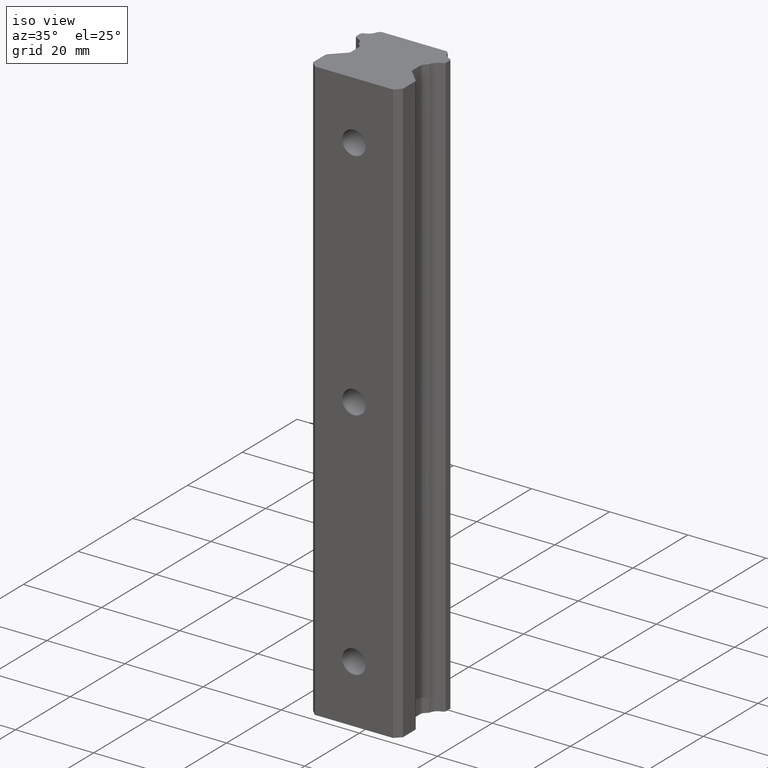
[diagram: clean part render]
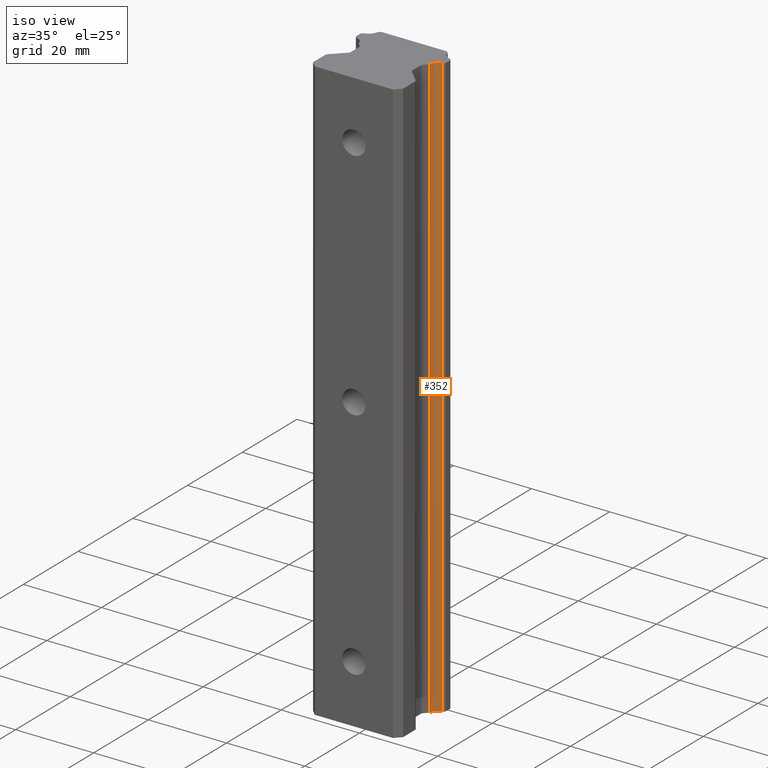
[diagram: same view with one face highlighted and labeled with its STEP entity id]
A machine part, iso view. The second image highlights one B-rep face of the part: STEP entity #352.
In plain terms, the highlighted cylindrical surface (edge-blend (fillet) strip) has radius 2.43 mm, axis along (0, 0, 1).
Its self-contained STEP definition (entity closure, byte-faithful):
#204 = EDGE_CURVE ( 'NONE', #241, #242, #1160, .T. ) ;
#229 = VERTEX_POINT ( 'NONE', #1098 ) ;
#231 = EDGE_CURVE ( 'NONE', #229, #232, #1043, .T. ) ;
#232 = VERTEX_POINT ( 'NONE', #1039 ) ;
#241 = VERTEX_POINT ( 'NONE', #1048 ) ;
#242 = VERTEX_POINT ( 'NONE', #1047 ) ;
#286 = ORIENTED_EDGE ( 'NONE', *, *, #204, .F. ) ;
#308 = EDGE_LOOP ( 'NONE', ( #411, #413, #356, #286 ) ) ;
#352 = ADVANCED_FACE ( 'NONE', ( #1236 ), #1234, .F. ) ;
#356 = ORIENTED_EDGE ( 'NONE', *, *, #357, .T. ) ;
#357 = EDGE_CURVE ( 'NONE', #229, #242, #1463, .T. ) ;
#411 = ORIENTED_EDGE ( 'NONE', *, *, #412, .F. ) ;
#412 = EDGE_CURVE ( 'NONE', #232, #241, #1395, .T. ) ;
#413 = ORIENTED_EDGE ( 'NONE', *, *, #231, .F. ) ;
#1039 = CARTESIAN_POINT ( 'NONE',  ( 9.070589883773381600, -7.235516472785252300, 75.00000000000000000 ) ) ;
#1040 = DIRECTION ( 'NONE',  ( 0.0000000000000000000, 0.0000000000000000000, 1.000000000000000000 ) ) ;
#1041 = VECTOR ( 'NONE', #1040, 1000.000000000000000 ) ;
#1042 = CARTESIAN_POINT ( 'NONE',  ( 9.070589883899195600, -7.235516472145559600, -75.00000000000000000 ) ) ;
#1043 = LINE ( 'NONE', #1042, #1041 ) ;
#1047 = CARTESIAN_POINT ( 'NONE',  ( 10.93986247312455100, -5.366243883702537700, -75.00000000000000000 ) ) ;
#1048 = CARTESIAN_POINT ( 'NONE',  ( 10.93986247312455100, -5.366243883702537700, 75.00000000000000000 ) ) ;
#1098 = CARTESIAN_POINT ( 'NONE',  ( 9.070589883773381600, -7.235516472785252300, -75.00000000000000000 ) ) ;
#1157 = DIRECTION ( 'NONE',  ( 0.0000000000000000000, 0.0000000000000000000, -1.000000000000000000 ) ) ;
#1158 = VECTOR ( 'NONE', #1157, 1000.000000000000000 ) ;
#1159 = CARTESIAN_POINT ( 'NONE',  ( 10.93986247282495100, -5.366243883757341000, -75.00000000000000000 ) ) ;
#1160 = LINE ( 'NONE', #1159, #1158 ) ;
#1230 = DIRECTION ( 'NONE',  ( 1.000000000000000000, 0.0000000000000000000, 0.0000000000000000000 ) ) ;
#1231 = DIRECTION ( 'NONE',  ( 0.0000000000000000000, 0.0000000000000000000, 1.000000000000000000 ) ) ;
#1232 = CARTESIAN_POINT ( 'NONE',  ( 11.44706701449000100, -7.742721014494001100, -75.00000000000000000 ) ) ;
#1233 = AXIS2_PLACEMENT_3D ( 'NONE', #1232, #1231, #1230 ) ;
#1234 = CYLINDRICAL_SURFACE ( 'NONE', #1233, 2.429999999999999700 ) ;
#1236 = FACE_OUTER_BOUND ( 'NONE', #308, .T. ) ;
#1370 = DIRECTION ( 'NONE',  ( 1.000000000000000000, 7.138779736530071300E-016, 0.0000000000000000000 ) ) ;
#1371 = DIRECTION ( 'NONE',  ( 0.0000000000000000000, 0.0000000000000000000, -1.000000000000000000 ) ) ;
#1372 = AXIS2_PLACEMENT_3D ( 'NONE', #1462, #1371, #1370 ) ;
#1395 = CIRCLE ( 'NONE', #1426, 2.429999999999999700 ) ;
#1423 = DIRECTION ( 'NONE',  ( 1.000000000000000000, 7.138779736530071300E-016, 0.0000000000000000000 ) ) ;
#1424 = DIRECTION ( 'NONE',  ( 0.0000000000000000000, 0.0000000000000000000, -1.000000000000000000 ) ) ;
#1425 = CARTESIAN_POINT ( 'NONE',  ( 11.44706701449000100, -7.742721014494001100, 75.00000000000000000 ) ) ;
#1426 = AXIS2_PLACEMENT_3D ( 'NONE', #1425, #1424, #1423 ) ;
#1462 = CARTESIAN_POINT ( 'NONE',  ( 11.44706701449000100, -7.742721014494001100, -75.00000000000000000 ) ) ;
#1463 = CIRCLE ( 'NONE', #1372, 2.429999999999999700 ) ;